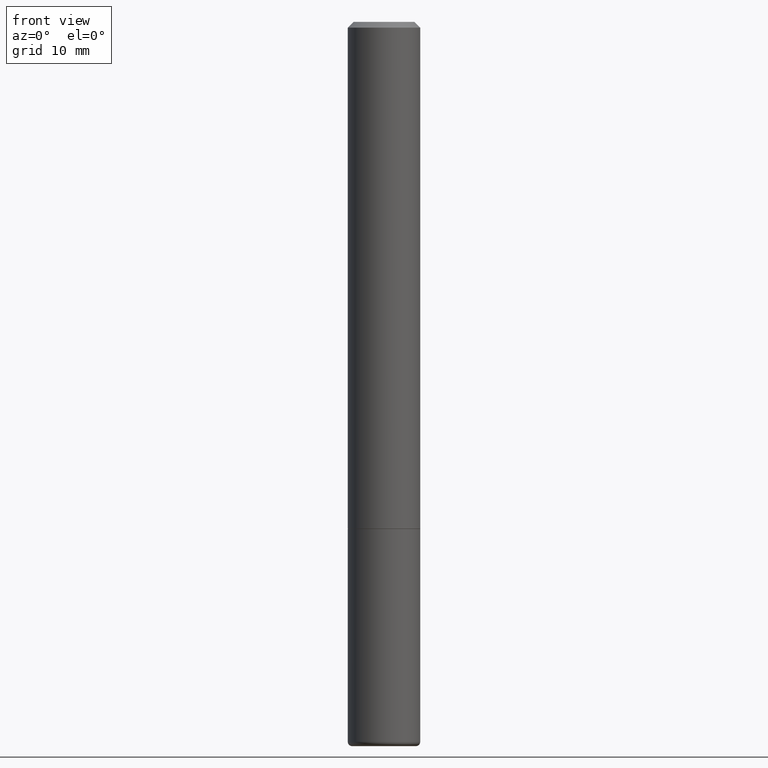
[diagram: clean part render]
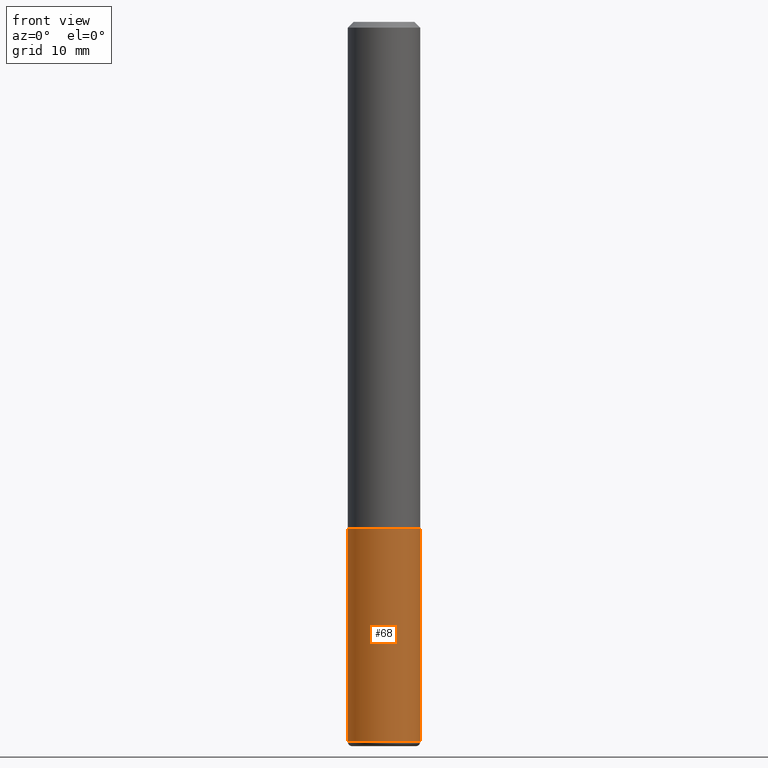
[diagram: same view with one face highlighted and labeled with its STEP entity id]
A machine part, front view. The second image highlights one B-rep face of the part: STEP entity #68.
In plain terms, the highlighted cylindrical surface (edge-blend (fillet) strip) has radius 3.175 mm, axis along (-0, 0, 1).
Its self-contained STEP definition (entity closure, byte-faithful):
#5 = CARTESIAN_POINT ( 'NONE',  ( 0.1250000000000000555, -9.549201461736000019E-15, -2.484999999999999876 ) ) ;
#11 = DIRECTION ( 'NONE',  ( -2.445468806185136597E-29, 3.491481338843145583E-15, 1.000000000000000000 ) ) ;
#13 = CARTESIAN_POINT ( 'NONE',  ( 4.279570410823989044E-29, -6.110092342975505460E-15, -1.750000000000000222 ) ) ;
#32 = CARTESIAN_POINT ( 'NONE',  ( 0.000000000000000000, 0.000000000000000000, 0.000000000000000000 ) ) ;
#67 = CARTESIAN_POINT ( 'NONE',  ( -0.1250000000000000000, 8.881784197001252323E-16, -6.148668862818632227E-30 ) ) ;
#68 = ADVANCED_FACE ( 'NONE', ( #192 ), #116, .T. ) ;
#77 = ORIENTED_EDGE ( 'NONE', *, *, #98, .T. ) ;
#79 = VERTEX_POINT ( 'NONE', #255 ) ;
#98 = EDGE_CURVE ( 'NONE', #278, #141, #380, .T. ) ;
#99 = LINE ( 'NONE', #67, #199 ) ;
#104 = DIRECTION ( 'NONE',  ( 1.000000000000000000, -6.982962677686262766E-15, 0.000000000000000000 ) ) ;
#114 = ORIENTED_EDGE ( 'NONE', *, *, #283, .F. ) ;
#116 = CYLINDRICAL_SURFACE ( 'NONE', #254, 0.1250000000000000000 ) ;
#118 = DIRECTION ( 'NONE',  ( -2.445468806185136597E-29, 3.491481338843145583E-15, 1.000000000000000000 ) ) ;
#141 = VERTEX_POINT ( 'NONE', #156 ) ;
#156 = CARTESIAN_POINT ( 'NONE',  ( 0.1250000000000000000, -6.982962677686288010E-15, -1.750000000000000222 ) ) ;
#176 = VECTOR ( 'NONE', #349, 39.37007874015748143 ) ;
#192 = FACE_OUTER_BOUND ( 'NONE', #238, .T. ) ;
#199 = VECTOR ( 'NONE', #237, 39.37007874015748143 ) ;
#237 = DIRECTION ( 'NONE',  ( -2.445468806185136877E-29, 3.491481338843145188E-15, 1.000000000000000000 ) ) ;
#238 = EDGE_LOOP ( 'NONE', ( #114, #303, #77, #337 ) ) ;
#254 = AXIS2_PLACEMENT_3D ( 'NONE', #32, #384, #376 ) ;
#255 = CARTESIAN_POINT ( 'NONE',  ( -0.1250000000000000555, -7.788152707325091448E-15, -2.484999999999999876 ) ) ;
#261 = AXIS2_PLACEMENT_3D ( 'NONE', #281, #118, #334 ) ;
#278 = VERTEX_POINT ( 'NONE', #5 ) ;
#281 = CARTESIAN_POINT ( 'NONE',  ( 6.076989983370064174E-29, -8.676331127025216680E-15, -2.484999999999999876 ) ) ;
#282 = CIRCLE ( 'NONE', #261, 0.1250000000000000000 ) ;
#283 = EDGE_CURVE ( 'NONE', #79, #409, #99, .T. ) ;
#303 = ORIENTED_EDGE ( 'NONE', *, *, #416, .T. ) ;
#318 = CIRCLE ( 'NONE', #387, 0.1250000000000000000 ) ;
#334 = DIRECTION ( 'NONE',  ( 1.000000000000000000, -6.982962677686270655E-15, 0.000000000000000000 ) ) ;
#337 = ORIENTED_EDGE ( 'NONE', *, *, #383, .F. ) ;
#349 = DIRECTION ( 'NONE',  ( -2.445468806185136877E-29, 3.491481338843145188E-15, 1.000000000000000000 ) ) ;
#376 = DIRECTION ( 'NONE',  ( 1.000000000000000000, -6.982962677686266711E-15, 4.876176775795935793E-29 ) ) ;
#380 = LINE ( 'NONE', #413, #176 ) ;
#383 = EDGE_CURVE ( 'NONE', #409, #141, #318, .T. ) ;
#384 = DIRECTION ( 'NONE',  ( -2.445468806185136597E-29, 3.491481338843145583E-15, 1.000000000000000000 ) ) ;
#387 = AXIS2_PLACEMENT_3D ( 'NONE', #13, #11, #104 ) ;
#404 = CARTESIAN_POINT ( 'NONE',  ( -0.1250000000000000000, -6.505033315300235838E-15, -1.750000000000000222 ) ) ;
#409 = VERTEX_POINT ( 'NONE', #404 ) ;
#413 = CARTESIAN_POINT ( 'NONE',  ( 0.1250000000000000000, -8.728703347107833388E-16, 6.095220969744919741E-30 ) ) ;
#416 = EDGE_CURVE ( 'NONE', #79, #278, #282, .T. ) ;